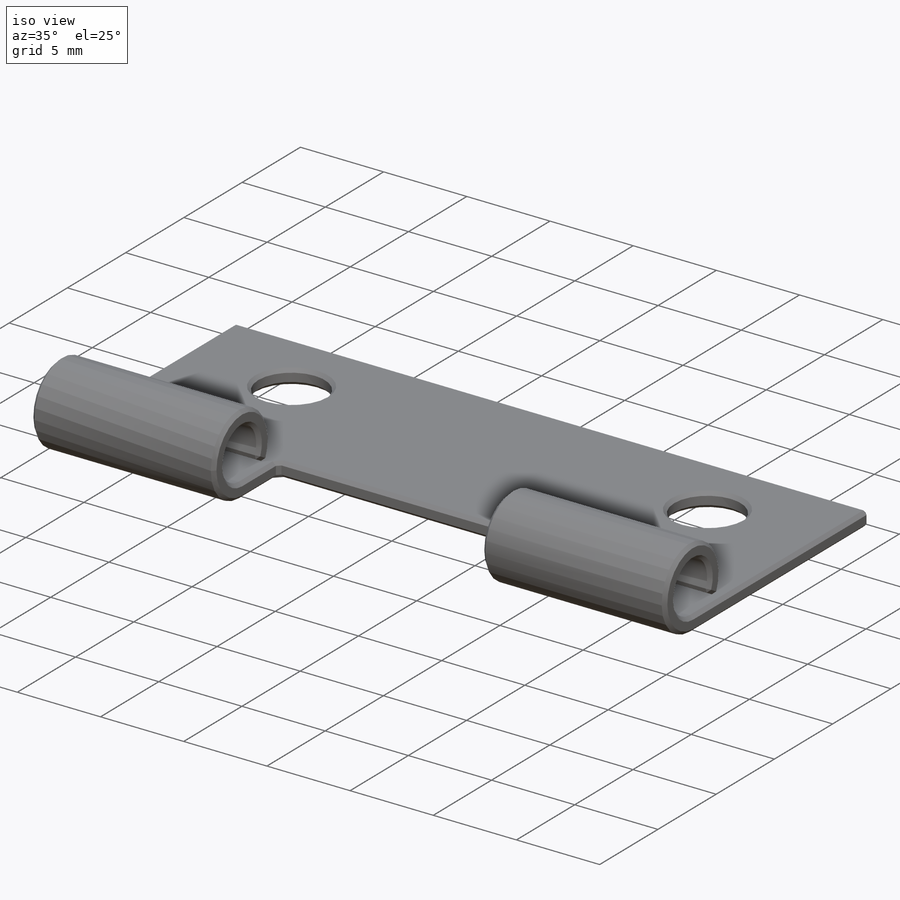
[diagram: iso view]
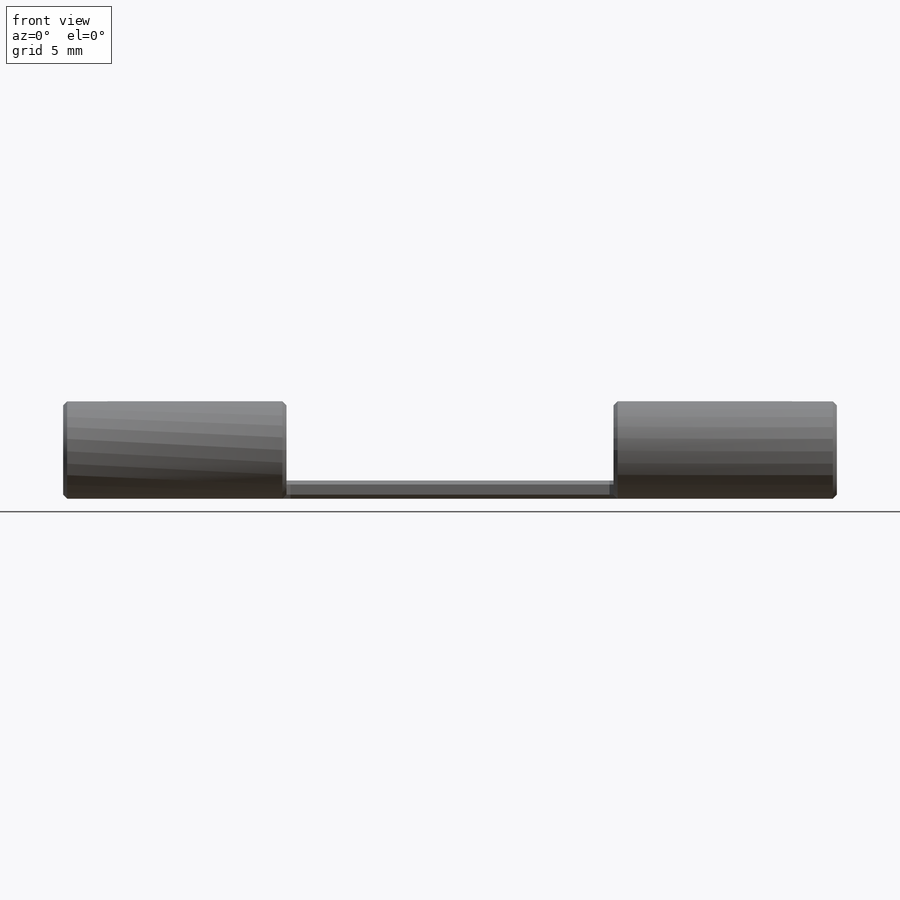
[diagram: front view]
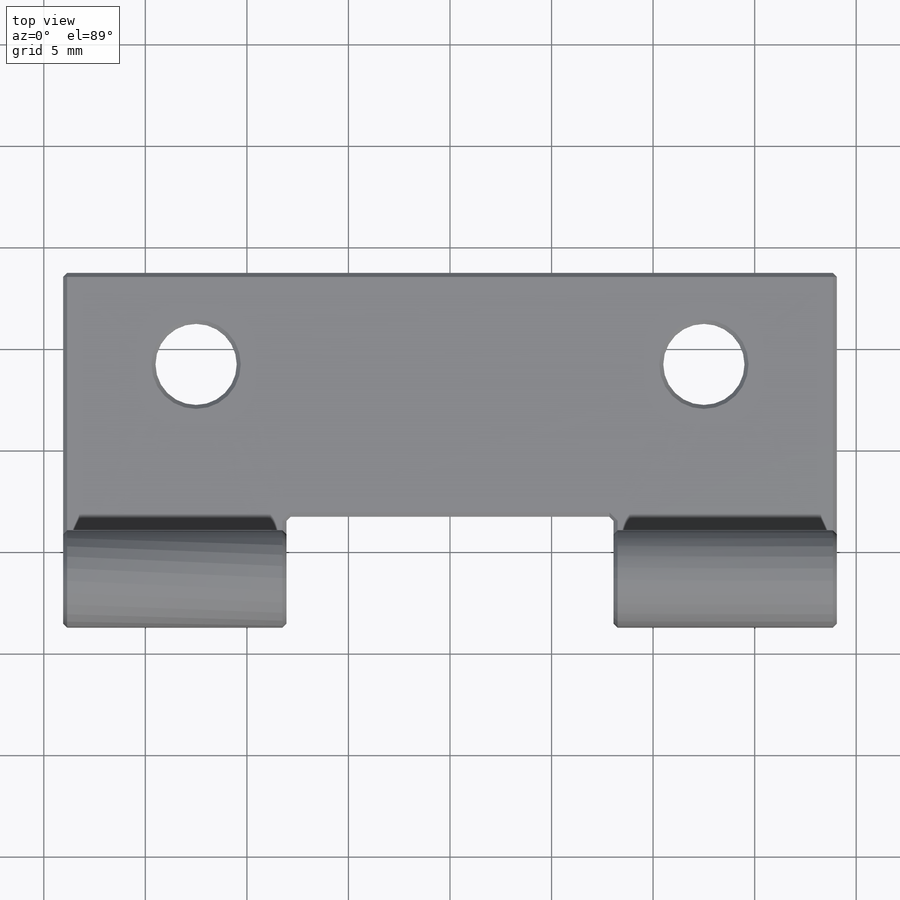
[diagram: top view]
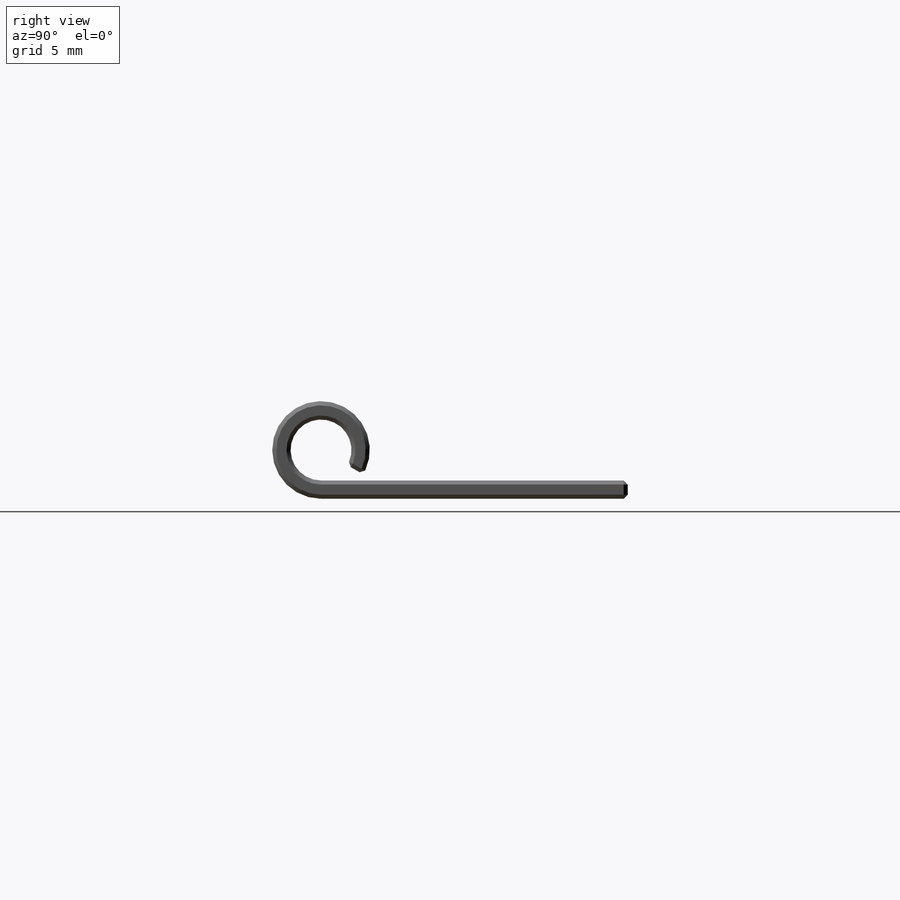
[diagram: right view]
SOLIDWORKS PART (.sldprt)
format: sldprt  version: not decoded by parser v0  size: 346,112 bytes
history: native  units: mm
features: sketch x5, sheet_metal_op x2, cut_extrude x2, material x1, chamfer x1 + 1 further entry (+12 scaffold rows collapsed; 1 parser-record rows omitted)
feature tree (25):
  scaffold x12  (default folders/planes/origin — collapsed)
  material  "Material <not specified>"
  sketch  "Sketch2"  dims[D1=17.5mm D2=38.1mm]
  sheet_metal_op  "Sheet-Metal1"
  sheet_metal_op  "Base-Flange1"
  sketch  "Sketch4"  dims[c1.D1=1.5mm c1.D4=300.0deg c1.D5=1.0 c1.D8=0.45mm c1.D9=0.45mm c2.D1=1.5mm c2.D9=1.0mm]
  sketch  "Sketch5"  dims[c1.D1=12.0mm c1.D2=13.0mm c1.D3=13.0mm c1.D4=15.0mm c1.D5=15.0mm c1.D6=12.0mm c2.D1=6.0mm c2.D6=18.0mm c2.D4=15.0mm c3.D1=6.0mm c3.D2=12.0mm c3.D3=13.0mm c3.D4=13.0mm c4.D1=12.0mm c4.D2=11.0mm]
  cut_extrude  "Cut-Extrude1"  [1 undecoded]
  sketch  "Sketch6"  dims[c1.D1=4.0mm c1.D2=5.0mm c1.D4=5.0mm c1.D5=5.0mm c2.D4=5.0mm c2.D2=7.0mm c2.D3=7.0mm c3.D4=7.0mm c3.D5=11.0mm c4.D4=15.5mm c4.D2=12.5mm c4.D3=12.5mm c5.D4=4.5mm]
  cut_extrude  "Cut-Extrude2"  [1 undecoded]
  chamfer  "Chamfer1"  Distance=0.2mm
  "Flat-Pattern1"
  sketch  "Bend-Lines1"
  parser-record x1  (decoder bookkeeping rows leaked as tree rows — omitted from the tree; the rows remain in map.json)
decode coverage: 5 of 10 modeling features carry decoded parameters; 1 rows unclassified (native names shown)
note: 2 parameter values undecoded
note: suppression state not decoded; provenance and decode notes live in map.json
